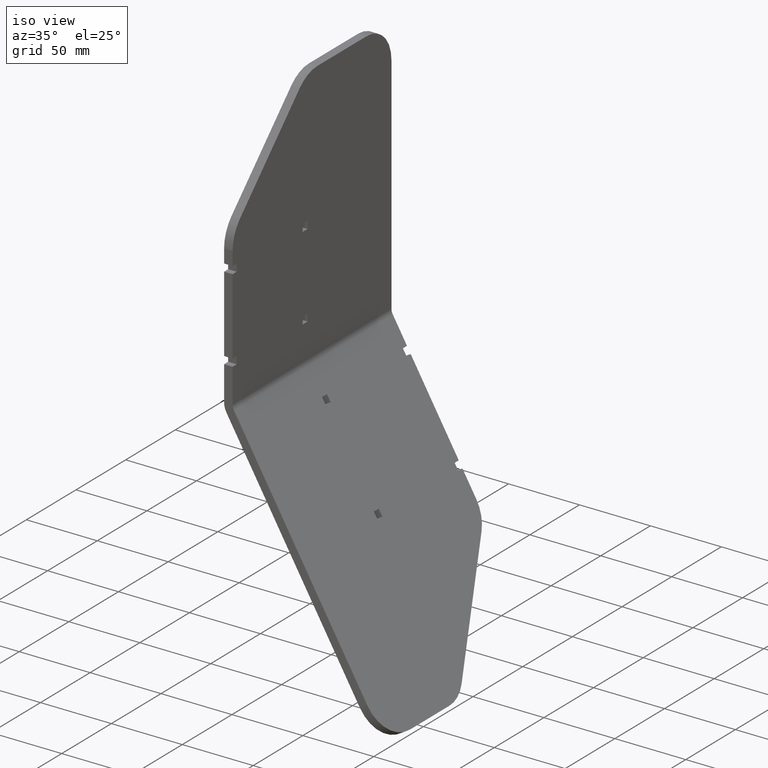
[diagram: clean part render]
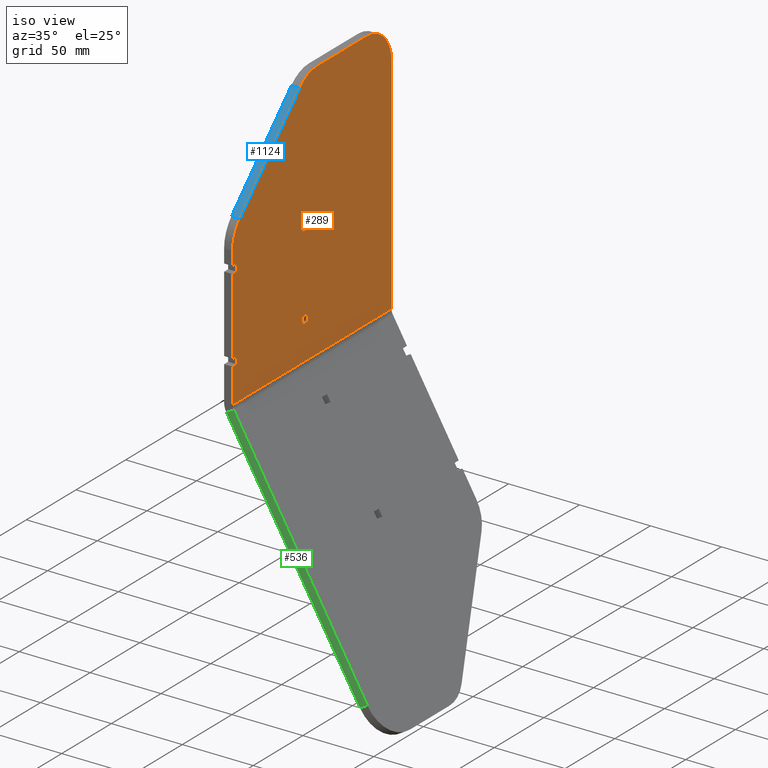
[diagram: same view with three faces highlighted in distinct colors, each labeled with its STEP entity id]
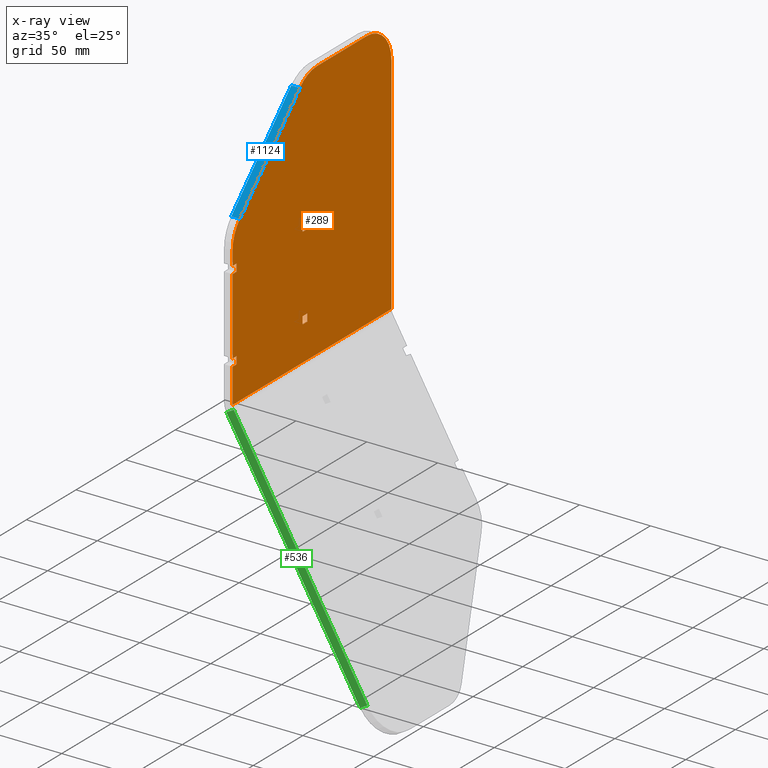
[diagram: x-ray of the same camera — body ghosted, the three highlighted faces saturated]
A machine part, iso view with three faces highlighted in distinct colors.
The next image is the same camera in x-ray (body ghosted, the three faces saturated) — at least one of them is partly hidden behind the body in this view.
Their STEP definitions:

[orange] entity #289 — the highlighted planar face has unit normal (1, 0, -0).
#11 = ORIENTED_EDGE ( 'NONE', *, *, #319, .T. ) ;
#29 = VERTEX_POINT ( 'NONE', #601 ) ;
#30 = LINE ( 'NONE', #1310, #995 ) ;
#40 = DIRECTION ( 'NONE',  ( -4.243493131577765870E-16, -0.7071067811865489050, -0.7071067811865462405 ) ) ;
#64 = EDGE_CURVE ( 'NONE', #116, #659, #460, .T. ) ;
#70 = VECTOR ( 'NONE', #1532, 1000.000000000000000 ) ;
#74 = CARTESIAN_POINT ( 'NONE',  ( -999.9999999999997726, -1178.805262667903662, -544.8999999999997499 ) ) ;
#76 = CARTESIAN_POINT ( 'NONE',  ( -999.9999999999996589, -1181.627593138240172, -457.3223304703362260 ) ) ;
#78 = EDGE_CURVE ( 'NONE', #473, #953, #30, .T. ) ;
#88 = DIRECTION ( 'NONE',  ( -0.000000000000000000, -1.000000000000000000, -0.000000000000000000 ) ) ;
#92 = CARTESIAN_POINT ( 'NONE',  ( -999.9999999999997726, -1178.805262667903662, -603.8999999999998636 ) ) ;
#93 = VERTEX_POINT ( 'NONE', #1580 ) ;
#99 = VECTOR ( 'NONE', #241, 1000.000000000000000 ) ;
#110 = CARTESIAN_POINT ( 'NONE',  ( -999.9999999999997726, -574.8301822523413875, -603.8999999999998636 ) ) ;
#115 = ORIENTED_EDGE ( 'NONE', *, *, #78, .T. ) ;
#116 = VERTEX_POINT ( 'NONE', #724 ) ;
#119 = DIRECTION ( 'NONE',  ( 0.000000000000000000, 0.000000000000000000, -1.000000000000000000 ) ) ;
#124 = DIRECTION ( 'NONE',  ( 6.001205538514363462E-16, 1.665669141091664491E-32, 1.000000000000000000 ) ) ;
#126 = VERTEX_POINT ( 'NONE', #198 ) ;
#130 = AXIS2_PLACEMENT_3D ( 'NONE', #1232, #1099, #119 ) ;
#175 = CARTESIAN_POINT ( 'NONE',  ( -999.9999999999996589, -1163.949923608576455, -474.9999999999999432 ) ) ;
#176 = VERTEX_POINT ( 'NONE', #628 ) ;
#184 = VECTOR ( 'NONE', #1192, 1000.000000000000000 ) ;
#185 = EDGE_CURVE ( 'NONE', #801, #1564, #353, .T. ) ;
#193 = CARTESIAN_POINT ( 'NONE',  ( -999.9999999999997726, -1249.305262667903662, -633.3923048454130367 ) ) ;
#198 = CARTESIAN_POINT ( 'NONE',  ( -999.9999999999997726, -1249.305262667903435, -603.8999999999990678 ) ) ;
#214 = EDGE_CURVE ( 'NONE', #1768, #116, #1751, .T. ) ;
#232 = LINE ( 'NONE', #384, #1257 ) ;
#241 = DIRECTION ( 'NONE',  ( 0.000000000000000000, 1.000000000000000000, 0.000000000000000000 ) ) ;
#242 = CARTESIAN_POINT ( 'NONE',  ( -999.9999999999997726, -1245.205262667903526, -544.8999999999997499 ) ) ;
#247 = VECTOR ( 'NONE', #741, 1000.000000000000000 ) ;
#270 = ORIENTED_EDGE ( 'NONE', *, *, #1501, .T. ) ;
#280 = ORIENTED_EDGE ( 'NONE', *, *, #433, .T. ) ;
#283 = ORIENTED_EDGE ( 'NONE', *, *, #185, .T. ) ;
#286 = EDGE_CURVE ( 'NONE', #892, #29, #1725, .T. ) ;
#289 = ADVANCED_FACE ( 'NONE', ( #807, #1047, #1731 ), #363, .T. ) ;
#294 = CARTESIAN_POINT ( 'NONE',  ( -999.9999999999997726, -1178.805262667903662, -634.9999999999997726 ) ) ;
#311 = CARTESIAN_POINT ( 'NONE',  ( -999.9999999999997726, -1245.205262667903526, -609.0999999999991132 ) ) ;
#319 = EDGE_CURVE ( 'NONE', #467, #93, #1778, .T. ) ;
#353 = LINE ( 'NONE', #773, #1021 ) ;
#363 = PLANE ( 'NONE',  #1545 ) ;
#373 = DIRECTION ( 'NONE',  ( 1.000000000000000000, 0.000000000000000000, -6.001205538514363462E-16 ) ) ;
#381 = ORIENTED_EDGE ( 'NONE', *, *, #1031, .T. ) ;
#383 = ORIENTED_EDGE ( 'NONE', *, *, #1184, .T. ) ;
#384 = CARTESIAN_POINT ( 'NONE',  ( -999.9999999999997726, -1173.805262667903889, -634.9999999999997726 ) ) ;
#388 = VECTOR ( 'NONE', #1083, 1000.000000000000000 ) ;
#394 = VECTOR ( 'NONE', #1333, 1000.000000000000000 ) ;
#416 = DIRECTION ( 'NONE',  ( 0.000000000000000000, 1.000000000000000000, 0.000000000000000000 ) ) ;
#421 = DIRECTION ( 'NONE',  ( 0.000000000000000000, -1.000000000000000000, 0.000000000000000000 ) ) ;
#423 = EDGE_CURVE ( 'NONE', #826, #643, #1255, .T. ) ;
#430 = CARTESIAN_POINT ( 'NONE',  ( -999.9999999999997726, -1178.805262667903662, -550.0999999999996817 ) ) ;
#432 = CARTESIAN_POINT ( 'NONE',  ( -999.9999999999997726, -574.8301822523413875, -609.0999999999999091 ) ) ;
#433 = EDGE_CURVE ( 'NONE', #970, #1579, #1239, .T. ) ;
#447 = VECTOR ( 'NONE', #88, 1000.000000000000000 ) ;
#459 = ORIENTED_EDGE ( 'NONE', *, *, #1196, .T. ) ;
#460 = LINE ( 'NONE', #996, #247 ) ;
#467 = VERTEX_POINT ( 'NONE', #1460 ) ;
#473 = VERTEX_POINT ( 'NONE', #76 ) ;
#476 = AXIS2_PLACEMENT_3D ( 'NONE', #175, #1712, #597 ) ;
#478 = VECTOR ( 'NONE', #908, 1000.000000000000000 ) ;
#493 = ORIENTED_EDGE ( 'NONE', *, *, #1041, .T. ) ;
#496 = CARTESIAN_POINT ( 'NONE',  ( -999.9999999999996589, -1241.982932197567607, -517.6776695296633761 ) ) ;
#517 = CARTESIAN_POINT ( 'NONE',  ( -999.9999999999997726, -574.8301822523413875, -544.8999999999997499 ) ) ;
#528 = EDGE_CURVE ( 'NONE', #1611, #970, #1673, .T. ) ;
#532 = DIRECTION ( 'NONE',  ( 0.000000000000000000, 0.000000000000000000, -1.000000000000000000 ) ) ;
#540 = VECTOR ( 'NONE', #1442, 1000.000000000000000 ) ;
#541 = LINE ( 'NONE', #1640, #1142 ) ;
#543 = VECTOR ( 'NONE', #1467, 1000.000000000000000 ) ;
#549 = ORIENTED_EDGE ( 'NONE', *, *, #1590, .T. ) ;
#564 = VERTEX_POINT ( 'NONE', #901 ) ;
#573 = LINE ( 'NONE', #432, #70 ) ;
#597 = DIRECTION ( 'NONE',  ( 0.000000000000000000, 0.000000000000000000, -1.000000000000000000 ) ) ;
#598 = ORIENTED_EDGE ( 'NONE', *, *, #1552, .T. ) ;
#601 = CARTESIAN_POINT ( 'NONE',  ( -999.9999999999996589, -1163.949923608576455, -449.9999999999998863 ) ) ;
#614 = CARTESIAN_POINT ( 'NONE',  ( -999.9999999999997726, -1178.805262667903662, -634.9999999999997726 ) ) ;
#628 = CARTESIAN_POINT ( 'NONE',  ( -999.9999999999997726, -1173.805262667903889, -550.0999999999996817 ) ) ;
#632 = CARTESIAN_POINT ( 'NONE',  ( -999.9999999999997726, -1089.305262667903889, -633.3923048454130367 ) ) ;
#643 = VERTEX_POINT ( 'NONE', #92 ) ;
#651 = ORIENTED_EDGE ( 'NONE', *, *, #1548, .T. ) ;
#656 = VECTOR ( 'NONE', #1072, 1000.000000000000000 ) ;
#659 = VERTEX_POINT ( 'NONE', #242 ) ;
#664 = ORIENTED_EDGE ( 'NONE', *, *, #1062, .F. ) ;
#686 = DIRECTION ( 'NONE',  ( 0.000000000000000000, 1.000000000000000000, 0.000000000000000000 ) ) ;
#689 = VECTOR ( 'NONE', #1382, 1000.000000000000000 ) ;
#714 = EDGE_CURVE ( 'NONE', #779, #1570, #1720, .T. ) ;
#724 = CARTESIAN_POINT ( 'NONE',  ( -999.9999999999997726, -1245.205262667903526, -550.0999999999996817 ) ) ;
#741 = DIRECTION ( 'NONE',  ( 6.001205538514363462E-16, -1.665669141091664491E-32, 1.000000000000000000 ) ) ;
#773 = CARTESIAN_POINT ( 'NONE',  ( -999.9999999999997726, -1249.305262667903662, -634.9999999999997726 ) ) ;
#776 = CARTESIAN_POINT ( 'NONE',  ( -999.9999999999997726, -574.8301822523413875, -550.0999999999996817 ) ) ;
#779 = VERTEX_POINT ( 'NONE', #193 ) ;
#783 = LINE ( 'NONE', #1063, #394 ) ;
#801 = VERTEX_POINT ( 'NONE', #890 ) ;
#807 = FACE_OUTER_BOUND ( 'NONE', #957, .T. ) ;
#808 = VERTEX_POINT ( 'NONE', #1007 ) ;
#817 = ORIENTED_EDGE ( 'NONE', *, *, #714, .T. ) ;
#826 = VERTEX_POINT ( 'NONE', #1025 ) ;
#828 = LINE ( 'NONE', #1765, #855 ) ;
#835 = DIRECTION ( 'NONE',  ( 1.000000000000000000, 0.000000000000000000, -6.001205538514363462E-16 ) ) ;
#855 = VECTOR ( 'NONE', #421, 1000.000000000000000 ) ;
#859 = ORIENTED_EDGE ( 'NONE', *, *, #528, .T. ) ;
#890 = CARTESIAN_POINT ( 'NONE',  ( -999.9999999999996589, -1249.305262667903662, -535.3553390593270933 ) ) ;
#892 = VERTEX_POINT ( 'NONE', #1268 ) ;
#897 = CARTESIAN_POINT ( 'NONE',  ( -999.9999999999997726, -1245.205262667903526, -603.8999999999990678 ) ) ;
#899 = EDGE_CURVE ( 'NONE', #29, #473, #1396, .T. ) ;
#901 = CARTESIAN_POINT ( 'NONE',  ( -999.9999999999997726, -1249.305262667903435, -609.0999999999991132 ) ) ;
#908 = DIRECTION ( 'NONE',  ( 0.000000000000000000, -1.000000000000000000, 0.000000000000000000 ) ) ;
#911 = AXIS2_PLACEMENT_3D ( 'NONE', #1392, #835, #532 ) ;
#923 = DIRECTION ( 'NONE',  ( -6.001205538514363462E-16, 0.000000000000000000, -1.000000000000000000 ) ) ;
#925 = VERTEX_POINT ( 'NONE', #311 ) ;
#935 = LINE ( 'NONE', #776, #543 ) ;
#953 = VERTEX_POINT ( 'NONE', #496 ) ;
#957 = EDGE_LOOP ( 'NONE', ( #980, #1078, #1634, #549, #817, #1723, #598, #1110, #1120, #115, #459, #283, #664, #1741, #1470, #270 ) ) ;
#961 = EDGE_CURVE ( 'NONE', #564, #925, #1218, .T. ) ;
#970 = VERTEX_POINT ( 'NONE', #74 ) ;
#980 = ORIENTED_EDGE ( 'NONE', *, *, #1173, .F. ) ;
#995 = VECTOR ( 'NONE', #40, 999.9999999999998863 ) ;
#996 = CARTESIAN_POINT ( 'NONE',  ( -999.9999999999997726, -1245.205262667903526, -634.9999999999997726 ) ) ;
#1007 = CARTESIAN_POINT ( 'NONE',  ( -999.9999999999996589, -1089.305262667903889, -474.9999999999999432 ) ) ;
#1014 = EDGE_CURVE ( 'NONE', #925, #1414, #1756, .T. ) ;
#1021 = VECTOR ( 'NONE', #1492, 1000.000000000000000 ) ;
#1025 = CARTESIAN_POINT ( 'NONE',  ( -999.9999999999997726, -1178.805262667903662, -609.0999999999999091 ) ) ;
#1031 = EDGE_CURVE ( 'NONE', #1579, #176, #232, .T. ) ;
#1033 = LINE ( 'NONE', #1582, #689 ) ;
#1035 = CARTESIAN_POINT ( 'NONE',  ( -999.9999999999997726, -1245.205262667903526, -634.9999999999997726 ) ) ;
#1041 = EDGE_CURVE ( 'NONE', #176, #1611, #935, .T. ) ;
#1044 = DIRECTION ( 'NONE',  ( -6.001205538514363462E-16, -1.665669141091664491E-32, -1.000000000000000000 ) ) ;
#1047 = FACE_BOUND ( 'NONE', #1523, .T. ) ;
#1049 = EDGE_LOOP ( 'NONE', ( #493, #859, #280, #381 ) ) ;
#1056 = VECTOR ( 'NONE', #686, 1000.000000000000000 ) ;
#1062 = EDGE_CURVE ( 'NONE', #659, #1564, #1316, .T. ) ;
#1063 = CARTESIAN_POINT ( 'NONE',  ( -999.9999999999997726, -1089.305262667903889, -634.9999999999997726 ) ) ;
#1072 = DIRECTION ( 'NONE',  ( 6.001205538514363462E-16, -1.665669141091664491E-32, 1.000000000000000000 ) ) ;
#1078 = ORIENTED_EDGE ( 'NONE', *, *, #1014, .F. ) ;
#1083 = DIRECTION ( 'NONE',  ( -6.001205538514363462E-16, -1.665669141091664491E-32, -1.000000000000000000 ) ) ;
#1092 = CARTESIAN_POINT ( 'NONE',  ( -999.9999999999997726, -574.8301822523413875, -544.8999999999997499 ) ) ;
#1093 = EDGE_CURVE ( 'NONE', #1570, #808, #783, .T. ) ;
#1094 = CARTESIAN_POINT ( 'NONE',  ( -999.9999999999997726, -1173.805262667904117, -544.8999999999997499 ) ) ;
#1099 = DIRECTION ( 'NONE',  ( 1.000000000000000000, 0.000000000000000000, -6.001205538514363462E-16 ) ) ;
#1108 = CIRCLE ( 'NONE', #911, 25.00000000000002132 ) ;
#1110 = ORIENTED_EDGE ( 'NONE', *, *, #286, .T. ) ;
#1120 = ORIENTED_EDGE ( 'NONE', *, *, #899, .T. ) ;
#1135 = VECTOR ( 'NONE', #416, 1000.000000000000000 ) ;
#1142 = VECTOR ( 'NONE', #1648, 1000.000000000000000 ) ;
#1171 = ORIENTED_EDGE ( 'NONE', *, *, #423, .T. ) ;
#1173 = EDGE_CURVE ( 'NONE', #1414, #126, #828, .T. ) ;
#1179 = CARTESIAN_POINT ( 'NONE',  ( -999.9999999999997726, -574.8301822523413875, -550.0999999999996817 ) ) ;
#1184 = EDGE_CURVE ( 'NONE', #93, #826, #573, .T. ) ;
#1192 = DIRECTION ( 'NONE',  ( 0.000000000000000000, 1.000000000000000000, 0.000000000000000000 ) ) ;
#1196 = EDGE_CURVE ( 'NONE', #953, #801, #1108, .T. ) ;
#1218 = LINE ( 'NONE', #1617, #99 ) ;
#1223 = CARTESIAN_POINT ( 'NONE',  ( -999.9999999999997726, -1249.305262667903435, -544.8999999999997499 ) ) ;
#1232 = CARTESIAN_POINT ( 'NONE',  ( -999.9999999999996589, -1114.305262667903662, -474.9999999999999432 ) ) ;
#1239 = LINE ( 'NONE', #1092, #1135 ) ;
#1240 = LINE ( 'NONE', #110, #1056 ) ;
#1255 = LINE ( 'NONE', #294, #1595 ) ;
#1257 = VECTOR ( 'NONE', #1044, 1000.000000000000000 ) ;
#1268 = CARTESIAN_POINT ( 'NONE',  ( -999.9999999999996589, -1114.305262667903662, -449.9999999999998863 ) ) ;
#1310 = CARTESIAN_POINT ( 'NONE',  ( -999.9999999999995453, -967.0677224601214448, -242.7624597922183227 ) ) ;
#1316 = LINE ( 'NONE', #517, #478 ) ;
#1333 = DIRECTION ( 'NONE',  ( 6.001205538514363462E-16, -0.000000000000000000, 1.000000000000000000 ) ) ;
#1354 = CARTESIAN_POINT ( 'NONE',  ( -999.9999999999997726, -1173.805262667903889, -634.9999999999997726 ) ) ;
#1369 = CARTESIAN_POINT ( 'NONE',  ( -999.9999999999997726, -1249.305262667903435, -550.0999999999996817 ) ) ;
#1382 = DIRECTION ( 'NONE',  ( -6.001205538514363462E-16, 0.000000000000000000, -1.000000000000000000 ) ) ;
#1392 = CARTESIAN_POINT ( 'NONE',  ( -999.9999999999996589, -1224.305262667903889, -535.3553390593270933 ) ) ;
#1396 = CIRCLE ( 'NONE', #476, 25.00000000000002132 ) ;
#1414 = VERTEX_POINT ( 'NONE', #897 ) ;
#1442 = DIRECTION ( 'NONE',  ( 6.001205538514363462E-16, 1.665669141091664491E-32, 1.000000000000000000 ) ) ;
#1460 = CARTESIAN_POINT ( 'NONE',  ( -999.9999999999997726, -1173.805262667904117, -603.8999999999998636 ) ) ;
#1467 = DIRECTION ( 'NONE',  ( 0.000000000000000000, -1.000000000000000000, 0.000000000000000000 ) ) ;
#1470 = ORIENTED_EDGE ( 'NONE', *, *, #214, .F. ) ;
#1479 = CARTESIAN_POINT ( 'NONE',  ( -999.9999999999996589, -574.8301822523413875, -449.9999999999998863 ) ) ;
#1492 = DIRECTION ( 'NONE',  ( -6.001205538514363462E-16, 0.000000000000000000, -1.000000000000000000 ) ) ;
#1501 = EDGE_CURVE ( 'NONE', #1768, #126, #1033, .T. ) ;
#1523 = EDGE_LOOP ( 'NONE', ( #383, #1171, #651, #11 ) ) ;
#1532 = DIRECTION ( 'NONE',  ( 0.000000000000000000, -1.000000000000000000, 0.000000000000000000 ) ) ;
#1545 = AXIS2_PLACEMENT_3D ( 'NONE', #1605, #373, #923 ) ;
#1548 = EDGE_CURVE ( 'NONE', #643, #467, #1240, .T. ) ;
#1552 = EDGE_CURVE ( 'NONE', #808, #892, #1682, .T. ) ;
#1564 = VERTEX_POINT ( 'NONE', #1223 ) ;
#1570 = VERTEX_POINT ( 'NONE', #1658 ) ;
#1579 = VERTEX_POINT ( 'NONE', #1094 ) ;
#1580 = CARTESIAN_POINT ( 'NONE',  ( -999.9999999999997726, -1173.805262667903889, -609.0999999999999091 ) ) ;
#1582 = CARTESIAN_POINT ( 'NONE',  ( -999.9999999999997726, -1249.305262667903662, -634.9999999999997726 ) ) ;
#1590 = EDGE_CURVE ( 'NONE', #564, #779, #541, .T. ) ;
#1595 = VECTOR ( 'NONE', #124, 1000.000000000000000 ) ;
#1605 = CARTESIAN_POINT ( 'NONE',  ( -999.9999999999997726, -574.8301822523413875, -634.9999999999997726 ) ) ;
#1611 = VERTEX_POINT ( 'NONE', #430 ) ;
#1617 = CARTESIAN_POINT ( 'NONE',  ( -999.9999999999997726, -574.8301822523413875, -609.0999999999991132 ) ) ;
#1634 = ORIENTED_EDGE ( 'NONE', *, *, #961, .F. ) ;
#1640 = CARTESIAN_POINT ( 'NONE',  ( -999.9999999999997726, -1249.305262667903662, -634.9999999999997726 ) ) ;
#1648 = DIRECTION ( 'NONE',  ( -6.001205538514363462E-16, 0.000000000000000000, -1.000000000000000000 ) ) ;
#1658 = CARTESIAN_POINT ( 'NONE',  ( -999.9999999999997726, -1089.305262667903889, -633.3923048454130367 ) ) ;
#1673 = LINE ( 'NONE', #614, #540 ) ;
#1679 = VECTOR ( 'NONE', #1710, 1000.000000000000000 ) ;
#1682 = CIRCLE ( 'NONE', #130, 25.00000000000002132 ) ;
#1710 = DIRECTION ( 'NONE',  ( -0.000000000000000000, 1.000000000000000000, -0.000000000000000000 ) ) ;
#1712 = DIRECTION ( 'NONE',  ( 1.000000000000000000, 0.000000000000000000, -6.001205538514363462E-16 ) ) ;
#1720 = LINE ( 'NONE', #632, #1679 ) ;
#1723 = ORIENTED_EDGE ( 'NONE', *, *, #1093, .T. ) ;
#1725 = LINE ( 'NONE', #1479, #447 ) ;
#1731 = FACE_BOUND ( 'NONE', #1049, .T. ) ;
#1741 = ORIENTED_EDGE ( 'NONE', *, *, #64, .F. ) ;
#1751 = LINE ( 'NONE', #1179, #184 ) ;
#1756 = LINE ( 'NONE', #1035, #656 ) ;
#1765 = CARTESIAN_POINT ( 'NONE',  ( -999.9999999999997726, -574.8301822523413875, -603.8999999999990678 ) ) ;
#1768 = VERTEX_POINT ( 'NONE', #1369 ) ;
#1778 = LINE ( 'NONE', #1354, #388 ) ;

[blue] entity #1124 — the highlighted planar face has unit normal (0, -0.7071, 0.7071).
#30 = LINE ( 'NONE', #1310, #995 ) ;
#40 = DIRECTION ( 'NONE',  ( -4.243493131577765870E-16, -0.7071067811865489050, -0.7071067811865462405 ) ) ;
#73 = VECTOR ( 'NONE', #355, 999.9999999999998863 ) ;
#76 = CARTESIAN_POINT ( 'NONE',  ( -999.9999999999996589, -1181.627593138240172, -457.3223304703362260 ) ) ;
#78 = EDGE_CURVE ( 'NONE', #473, #953, #30, .T. ) ;
#147 = FACE_OUTER_BOUND ( 'NONE', #983, .T. ) ;
#155 = VERTEX_POINT ( 'NONE', #380 ) ;
#158 = VECTOR ( 'NONE', #931, 1000.000000000000000 ) ;
#186 = VECTOR ( 'NONE', #339, 1000.000000000000000 ) ;
#209 = EDGE_CURVE ( 'NONE', #1387, #473, #1464, .T. ) ;
#234 = ORIENTED_EDGE ( 'NONE', *, *, #1437, .T. ) ;
#326 = ORIENTED_EDGE ( 'NONE', *, *, #937, .T. ) ;
#339 = DIRECTION ( 'NONE',  ( 1.000000000000000000, 0.000000000000000000, -6.001205538514363462E-16 ) ) ;
#355 = DIRECTION ( 'NONE',  ( -4.243493131577765870E-16, -0.7071067811865489050, -0.7071067811865462405 ) ) ;
#380 = CARTESIAN_POINT ( 'NONE',  ( -1005.999999999999773, -1241.982932197567607, -517.6776695296633761 ) ) ;
#473 = VERTEX_POINT ( 'NONE', #76 ) ;
#496 = CARTESIAN_POINT ( 'NONE',  ( -999.9999999999996589, -1241.982932197567607, -517.6776695296633761 ) ) ;
#560 = PLANE ( 'NONE',  #1201 ) ;
#717 = ORIENTED_EDGE ( 'NONE', *, *, #78, .F. ) ;
#880 = LINE ( 'NONE', #1575, #186 ) ;
#931 = DIRECTION ( 'NONE',  ( 1.000000000000000000, 0.000000000000000000, -6.001205538514363462E-16 ) ) ;
#937 = EDGE_CURVE ( 'NONE', #155, #953, #880, .T. ) ;
#953 = VERTEX_POINT ( 'NONE', #496 ) ;
#983 = EDGE_LOOP ( 'NONE', ( #1159, #234, #326, #717 ) ) ;
#995 = VECTOR ( 'NONE', #40, 999.9999999999998863 ) ;
#1124 = ADVANCED_FACE ( 'NONE', ( #147 ), #560, .T. ) ;
#1159 = ORIENTED_EDGE ( 'NONE', *, *, #209, .F. ) ;
#1167 = LINE ( 'NONE', #1187, #73 ) ;
#1187 = CARTESIAN_POINT ( 'NONE',  ( -1005.999999999999545, -967.0677224601214448, -242.7624597922183227 ) ) ;
#1201 = AXIS2_PLACEMENT_3D ( 'NONE', #1505, #1643, #1385 ) ;
#1214 = CARTESIAN_POINT ( 'NONE',  ( -999.9999999999996589, -1181.627593138240172, -457.3223304703362260 ) ) ;
#1310 = CARTESIAN_POINT ( 'NONE',  ( -999.9999999999995453, -967.0677224601214448, -242.7624597922183227 ) ) ;
#1385 = DIRECTION ( 'NONE',  ( -4.243493131577765870E-16, -0.7071067811865489050, -0.7071067811865462405 ) ) ;
#1387 = VERTEX_POINT ( 'NONE', #1455 ) ;
#1437 = EDGE_CURVE ( 'NONE', #1387, #155, #1167, .T. ) ;
#1455 = CARTESIAN_POINT ( 'NONE',  ( -1005.999999999999773, -1181.627593138240172, -457.3223304703362260 ) ) ;
#1464 = LINE ( 'NONE', #1214, #158 ) ;
#1505 = CARTESIAN_POINT ( 'NONE',  ( -999.9999999999995453, -967.0677224601214448, -242.7624597922183227 ) ) ;
#1575 = CARTESIAN_POINT ( 'NONE',  ( -999.9999999999996589, -1241.982932197567607, -517.6776695296633761 ) ) ;
#1643 = DIRECTION ( 'NONE',  ( 4.243493131577781155E-16, -0.7071067811865462405, 0.7071067811865489050 ) ) ;

[green] entity #536 — the highlighted planar face has unit normal (0, -1, 0).
#85 = CARTESIAN_POINT ( 'NONE',  ( -999.1961524227064046, -1249.305262667903662, -636.3923048454130367 ) ) ;
#100 = CARTESIAN_POINT ( 'NONE',  ( -829.5299461620750208, -1249.305262667903662, -930.2627944162877611 ) ) ;
#144 = CARTESIAN_POINT ( 'NONE',  ( -904.9999999999996589, -1249.305262667903662, -799.5448267190434990 ) ) ;
#156 = CARTESIAN_POINT ( 'NONE',  ( -904.9999999999996589, -1249.305262667903662, -799.5448267190434990 ) ) ;
#218 = LINE ( 'NONE', #509, #1166 ) ;
#219 = EDGE_CURVE ( 'NONE', #1441, #1366, #218, .T. ) ;
#475 = CARTESIAN_POINT ( 'NONE',  ( -829.5299461620750208, -1249.305262667903662, -930.2627944162877611 ) ) ;
#484 = LINE ( 'NONE', #100, #712 ) ;
#509 = CARTESIAN_POINT ( 'NONE',  ( -834.7260985847816528, -1249.305262667903662, -933.2627944162877611 ) ) ;
#536 = ADVANCED_FACE ( 'NONE', ( #1592 ), #1704, .T. ) ;
#641 = DIRECTION ( 'NONE',  ( 0.8660254037844389297, -0.000000000000000000, 0.4999999999999995559 ) ) ;
#712 = VECTOR ( 'NONE', #774, 999.9999999999998863 ) ;
#765 = DIRECTION ( 'NONE',  ( 0.000000000000000000, -1.000000000000000000, 0.000000000000000000 ) ) ;
#774 = DIRECTION ( 'NONE',  ( 0.4999999999999995004, -0.000000000000000000, -0.8660254037844390407 ) ) ;
#797 = DIRECTION ( 'NONE',  ( 0.4999999999999995559, 0.000000000000000000, -0.8660254037844389297 ) ) ;
#971 = ORIENTED_EDGE ( 'NONE', *, *, #1207, .T. ) ;
#989 = ORIENTED_EDGE ( 'NONE', *, *, #1065, .F. ) ;
#1065 = EDGE_CURVE ( 'NONE', #1441, #1443, #1326, .T. ) ;
#1166 = VECTOR ( 'NONE', #797, 1000.000000000000000 ) ;
#1172 = VECTOR ( 'NONE', #641, 1000.000000000000000 ) ;
#1191 = ORIENTED_EDGE ( 'NONE', *, *, #219, .T. ) ;
#1193 = CARTESIAN_POINT ( 'NONE',  ( -1004.392304845413037, -1249.305262667903662, -639.3923048454129230 ) ) ;
#1207 = EDGE_CURVE ( 'NONE', #1366, #1524, #1378, .T. ) ;
#1261 = DIRECTION ( 'NONE',  ( 0.8660254037844389297, -0.000000000000000000, 0.4999999999999995559 ) ) ;
#1281 = AXIS2_PLACEMENT_3D ( 'NONE', #475, #765, #1305 ) ;
#1282 = VECTOR ( 'NONE', #1261, 1000.000000000000000 ) ;
#1305 = DIRECTION ( 'NONE',  ( 0.4999999999999994449, -0.000000000000000000, -0.8660254037844389297 ) ) ;
#1326 = LINE ( 'NONE', #85, #1172 ) ;
#1338 = CARTESIAN_POINT ( 'NONE',  ( -999.1961524227064046, -1249.305262667903662, -636.3923048454130367 ) ) ;
#1366 = VERTEX_POINT ( 'NONE', #1588 ) ;
#1378 = LINE ( 'NONE', #156, #1282 ) ;
#1441 = VERTEX_POINT ( 'NONE', #1193 ) ;
#1443 = VERTEX_POINT ( 'NONE', #1338 ) ;
#1474 = EDGE_CURVE ( 'NONE', #1443, #1524, #484, .T. ) ;
#1513 = ORIENTED_EDGE ( 'NONE', *, *, #1474, .F. ) ;
#1524 = VERTEX_POINT ( 'NONE', #144 ) ;
#1588 = CARTESIAN_POINT ( 'NONE',  ( -910.1961524227064046, -1249.305262667903662, -802.5448267190434990 ) ) ;
#1592 = FACE_OUTER_BOUND ( 'NONE', #1646, .T. ) ;
#1646 = EDGE_LOOP ( 'NONE', ( #989, #1191, #971, #1513 ) ) ;
#1704 = PLANE ( 'NONE',  #1281 ) ;